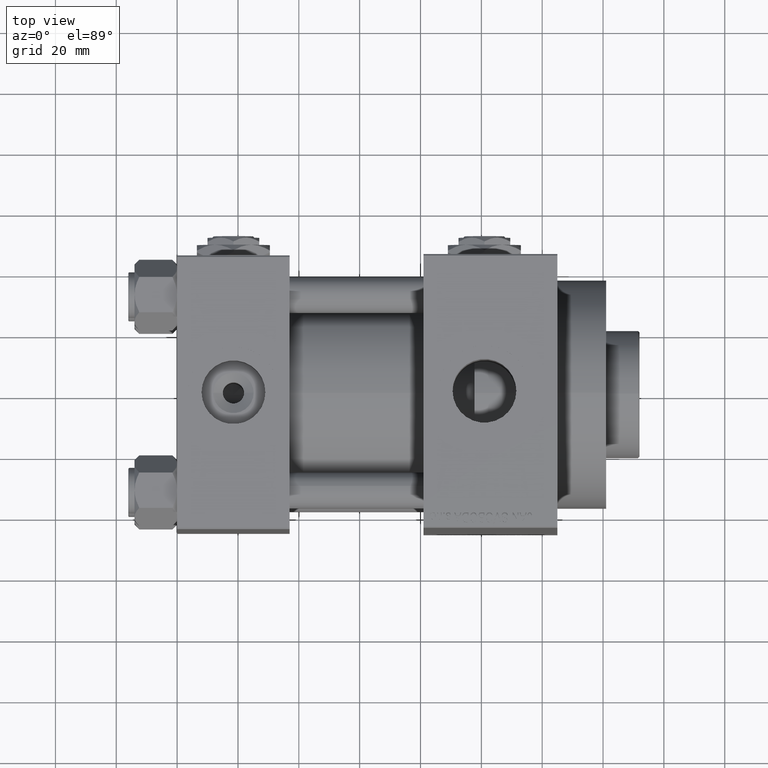
[diagram: clean part render]
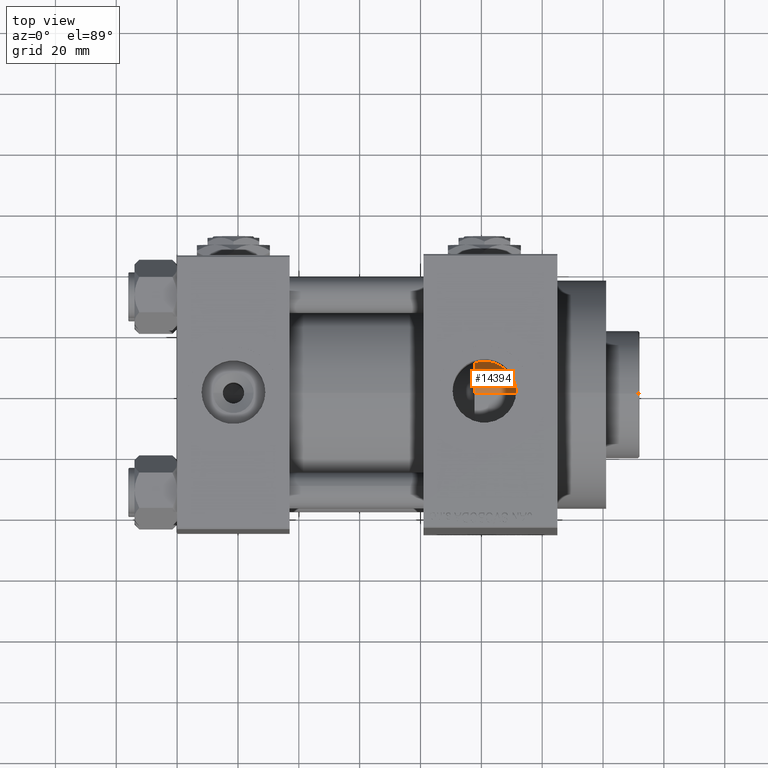
[diagram: same view with one face highlighted and labeled with its STEP entity id]
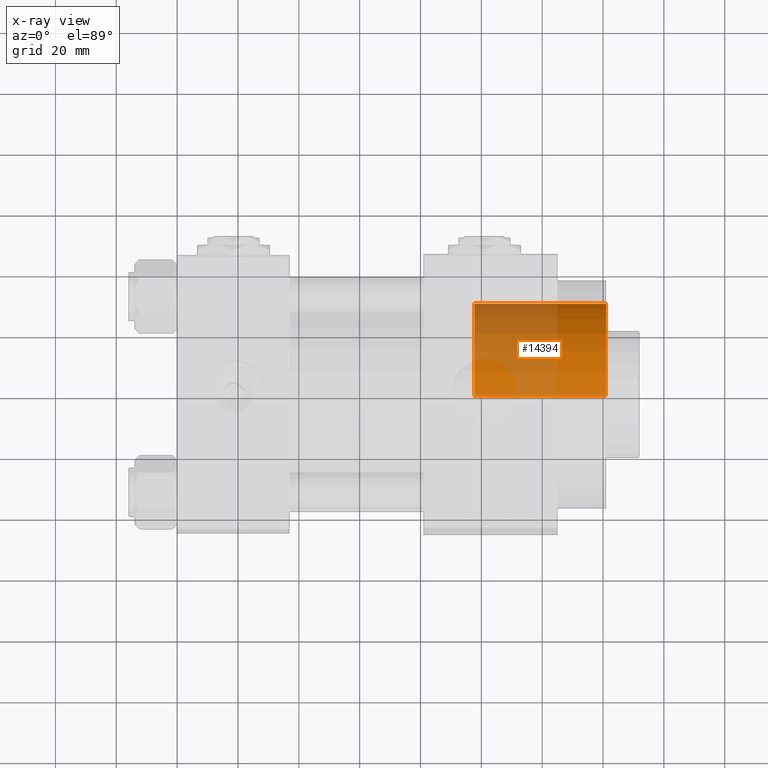
[diagram: x-ray of the same camera — body ghosted, the highlighted face saturated]
A machine part, top view. The second image highlights one B-rep face of the part: STEP entity #14394.
The next image is the same camera in x-ray: the body ghosted, the highlighted face saturated — about 55% of this face is hidden behind the body in this view.
In plain terms, the highlighted cylindrical surface (partial cylindrical patch) has radius 30 mm, axis along (-1, 0, 0).
Its self-contained STEP definition (entity closure, byte-faithful):
#1607 = CIRCLE ( 'NONE', #14296, 30.00000000000000000 ) ;
#1712 = VERTEX_POINT ( 'NONE', #27305 ) ;
#1871 = FACE_OUTER_BOUND ( 'NONE', #14812, .T. ) ;
#2701 = CARTESIAN_POINT ( 'NONE',  ( -30.00000000000000000, 0.000000000000000000, 43.25999999999999801 ) ) ;
#4691 = DIRECTION ( 'NONE',  ( 0.000000000000000000, 0.000000000000000000, 1.000000000000000000 ) ) ;
#4965 = VECTOR ( 'NONE', #25607, 1000.000000000000000 ) ;
#6170 = EDGE_CURVE ( 'NONE', #39501, #44876, #31510, .T. ) ;
#7754 = VERTEX_POINT ( 'NONE', #18314 ) ;
#8331 = AXIS2_PLACEMENT_3D ( 'NONE', #34540, #45275, #11347 ) ;
#10415 = ORIENTED_EDGE ( 'NONE', *, *, #6170, .F. ) ;
#11347 = DIRECTION ( 'NONE',  ( 1.000000000000000000, 0.000000000000000000, 0.000000000000000000 ) ) ;
#12952 = EDGE_CURVE ( 'NONE', #7754, #39501, #1607, .T. ) ;
#14296 = AXIS2_PLACEMENT_3D ( 'NONE', #46324, #4691, #16140 ) ;
#14394 = ADVANCED_FACE ( 'NONE', ( #1871 ), #43495, .T. ) ;
#14812 = EDGE_LOOP ( 'NONE', ( #10415, #47377, #19361, #22955 ) ) ;
#15377 = CARTESIAN_POINT ( 'NONE',  ( 30.00000000000000000, 3.673940397442059178E-15, 43.25999999999999801 ) ) ;
#15562 = CARTESIAN_POINT ( 'NONE',  ( 30.00000000000000000, 3.673940397442059178E-15, 43.25999999999999801 ) ) ;
#16140 = DIRECTION ( 'NONE',  ( 1.000000000000000000, 0.000000000000000000, 0.000000000000000000 ) ) ;
#18314 = CARTESIAN_POINT ( 'NONE',  ( -30.00000000000000000, 0.000000000000000000, 43.25999999999999801 ) ) ;
#19361 = ORIENTED_EDGE ( 'NONE', *, *, #19482, .T. ) ;
#19482 = EDGE_CURVE ( 'NONE', #7754, #1712, #40601, .T. ) ;
#22955 = ORIENTED_EDGE ( 'NONE', *, *, #25569, .T. ) ;
#24416 = VECTOR ( 'NONE', #45752, 1000.000000000000000 ) ;
#24531 = CARTESIAN_POINT ( 'NONE',  ( 0.000000000000000000, 0.000000000000000000, 43.25999999999999801 ) ) ;
#25569 = EDGE_CURVE ( 'NONE', #1712, #44876, #29795, .T. ) ;
#25607 = DIRECTION ( 'NONE',  ( -0.000000000000000000, -0.000000000000000000, -1.000000000000000000 ) ) ;
#27305 = CARTESIAN_POINT ( 'NONE',  ( -30.00000000000000000, 0.000000000000000000, 0.000000000000000000 ) ) ;
#29795 = CIRCLE ( 'NONE', #8331, 30.00000000000000000 ) ;
#31510 = LINE ( 'NONE', #15562, #24416 ) ;
#31999 = AXIS2_PLACEMENT_3D ( 'NONE', #24531, #32522, #39752 ) ;
#32522 = DIRECTION ( 'NONE',  ( -0.000000000000000000, -0.000000000000000000, -1.000000000000000000 ) ) ;
#34540 = CARTESIAN_POINT ( 'NONE',  ( 0.000000000000000000, 0.000000000000000000, 0.000000000000000000 ) ) ;
#39501 = VERTEX_POINT ( 'NONE', #15377 ) ;
#39752 = DIRECTION ( 'NONE',  ( -1.000000000000000000, 0.000000000000000000, 0.000000000000000000 ) ) ;
#40601 = LINE ( 'NONE', #2701, #4965 ) ;
#43495 = CYLINDRICAL_SURFACE ( 'NONE', #31999, 30.00000000000000000 ) ;
#44876 = VERTEX_POINT ( 'NONE', #46316 ) ;
#45275 = DIRECTION ( 'NONE',  ( 0.000000000000000000, 0.000000000000000000, 1.000000000000000000 ) ) ;
#45752 = DIRECTION ( 'NONE',  ( -0.000000000000000000, -0.000000000000000000, -1.000000000000000000 ) ) ;
#46316 = CARTESIAN_POINT ( 'NONE',  ( 30.00000000000000000, 3.673940397442059178E-15, 0.000000000000000000 ) ) ;
#46324 = CARTESIAN_POINT ( 'NONE',  ( 0.000000000000000000, 0.000000000000000000, 43.25999999999999801 ) ) ;
#47377 = ORIENTED_EDGE ( 'NONE', *, *, #12952, .F. ) ;